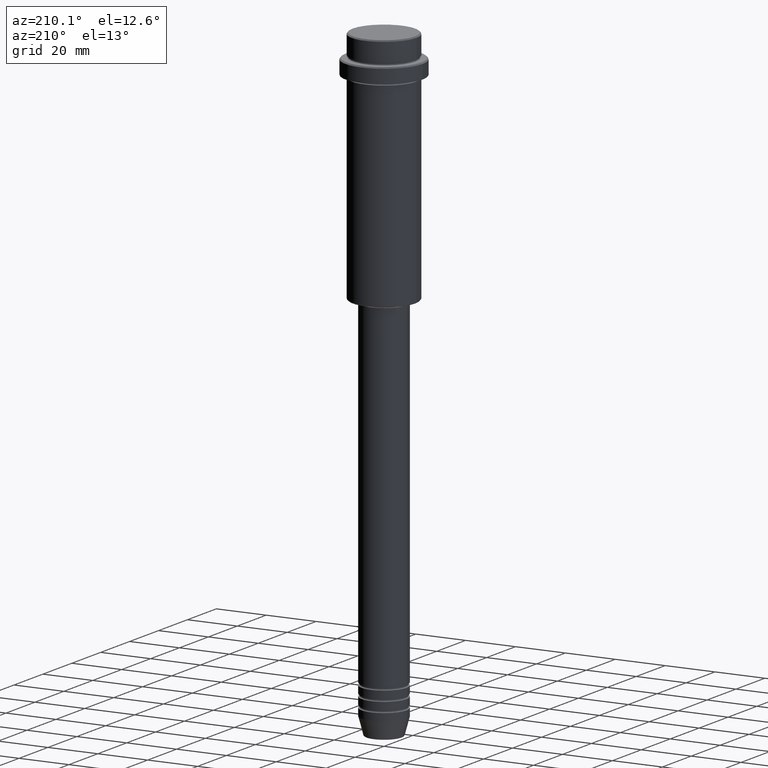
[diagram: clean part render]
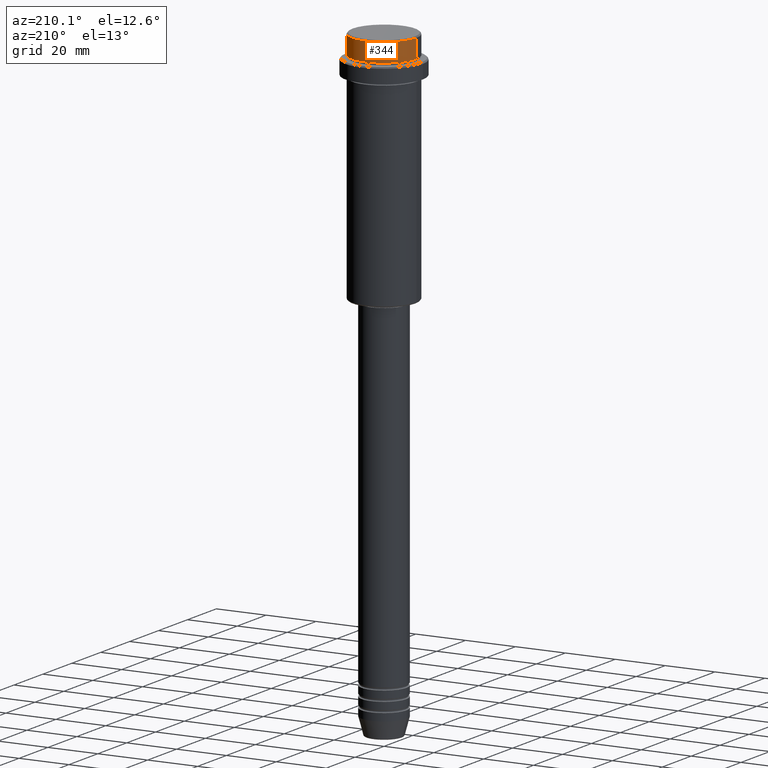
[diagram: same view with one face highlighted and labeled with its STEP entity id]
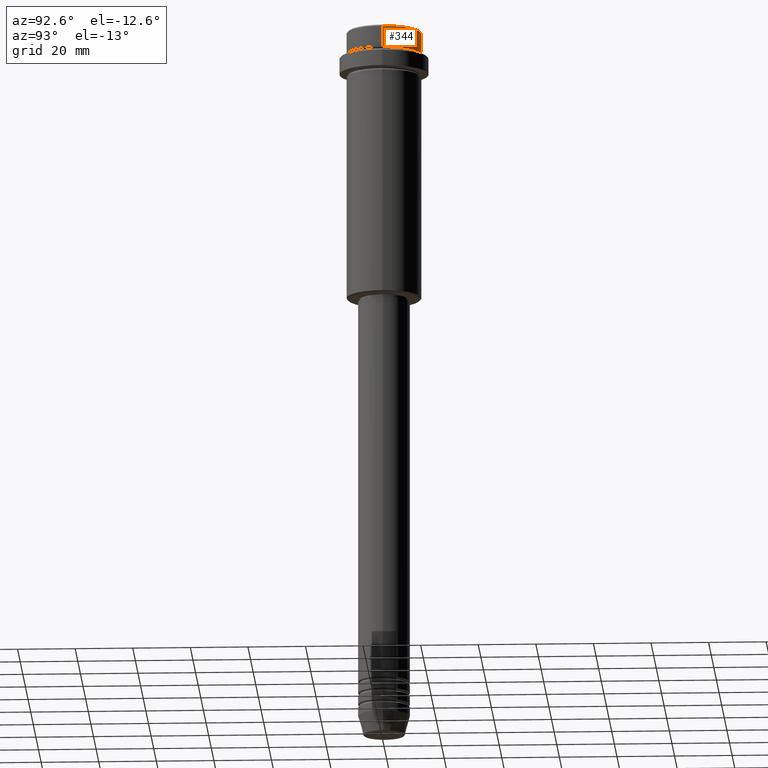
[diagram: same view with one face highlighted and labeled with its STEP entity id]
A machine part, auxiliary view. The second image highlights one B-rep face of the part: STEP entity #344.
A second angle (auxiliary view) of the same face is appended — the face is thin or edge-on in the first view.
In plain terms, the highlighted cylindrical surface (partial cylindrical patch) has radius 13 mm, axis along (-0, -0, 1).
Its self-contained STEP definition (entity closure, byte-faithful):
#12 = CARTESIAN_POINT ( 'NONE',  ( -12.99999999999999822, 1.592040838891558898E-15, -0.5000000000000037748 ) ) ;
#134 = VECTOR ( 'NONE', #1129, 1000.000000000000000 ) ;
#189 = AXIS2_PLACEMENT_3D ( 'NONE', #1327, #781, #1217 ) ;
#254 = VERTEX_POINT ( 'NONE', #998 ) ;
#323 = DIRECTION ( 'NONE',  ( -0.000000000000000000, -0.000000000000000000, 1.000000000000000000 ) ) ;
#344 = ADVANCED_FACE ( 'NONE', ( #1375 ), #1352, .T. ) ;
#351 = EDGE_LOOP ( 'NONE', ( #472, #1298, #1049, #956 ) ) ;
#472 = ORIENTED_EDGE ( 'NONE', *, *, #753, .T. ) ;
#648 = CARTESIAN_POINT ( 'NONE',  ( -12.99999999999999822, 1.592040838891558898E-15, 0.000000000000000000 ) ) ;
#689 = VECTOR ( 'NONE', #1204, 1000.000000000000000 ) ;
#699 = CARTESIAN_POINT ( 'NONE',  ( 12.99999999999999822, 0.000000000000000000, 0.000000000000000000 ) ) ;
#733 = VERTEX_POINT ( 'NONE', #1091 ) ;
#753 = EDGE_CURVE ( 'NONE', #733, #1406, #874, .T. ) ;
#781 = DIRECTION ( 'NONE',  ( 0.000000000000000000, 0.000000000000000000, -1.000000000000000000 ) ) ;
#800 = LINE ( 'NONE', #699, #134 ) ;
#801 = CIRCLE ( 'NONE', #189, 12.99999999999999822 ) ;
#811 = CARTESIAN_POINT ( 'NONE',  ( 0.000000000000000000, 0.000000000000000000, 0.000000000000000000 ) ) ;
#815 = EDGE_CURVE ( 'NONE', #1406, #1314, #1296, .T. ) ;
#867 = DIRECTION ( 'NONE',  ( 1.000000000000000000, 0.000000000000000000, 0.000000000000000000 ) ) ;
#874 = CIRCLE ( 'NONE', #1308, 12.99999999999999822 ) ;
#917 = EDGE_CURVE ( 'NONE', #733, #254, #800, .T. ) ;
#944 = EDGE_CURVE ( 'NONE', #1314, #254, #801, .T. ) ;
#956 = ORIENTED_EDGE ( 'NONE', *, *, #917, .F. ) ;
#972 = AXIS2_PLACEMENT_3D ( 'NONE', #811, #1249, #1392 ) ;
#998 = CARTESIAN_POINT ( 'NONE',  ( 12.99999999999999822, 0.000000000000000000, -0.5000000000000037748 ) ) ;
#1049 = ORIENTED_EDGE ( 'NONE', *, *, #944, .T. ) ;
#1091 = CARTESIAN_POINT ( 'NONE',  ( 12.99999999999999822, 0.000000000000000000, -7.999999999999998224 ) ) ;
#1101 = CARTESIAN_POINT ( 'NONE',  ( 0.000000000000000000, 0.000000000000000000, -7.999999999999998224 ) ) ;
#1129 = DIRECTION ( 'NONE',  ( -0.000000000000000000, -0.000000000000000000, 1.000000000000000000 ) ) ;
#1204 = DIRECTION ( 'NONE',  ( -0.000000000000000000, -0.000000000000000000, 1.000000000000000000 ) ) ;
#1206 = CARTESIAN_POINT ( 'NONE',  ( -12.99999999999999822, 1.592040838891558898E-15, -7.999999999999998224 ) ) ;
#1217 = DIRECTION ( 'NONE',  ( 1.000000000000000000, 0.000000000000000000, 0.000000000000000000 ) ) ;
#1249 = DIRECTION ( 'NONE',  ( -0.000000000000000000, -0.000000000000000000, 1.000000000000000000 ) ) ;
#1296 = LINE ( 'NONE', #648, #689 ) ;
#1298 = ORIENTED_EDGE ( 'NONE', *, *, #815, .T. ) ;
#1308 = AXIS2_PLACEMENT_3D ( 'NONE', #1101, #323, #867 ) ;
#1314 = VERTEX_POINT ( 'NONE', #12 ) ;
#1327 = CARTESIAN_POINT ( 'NONE',  ( 0.000000000000000000, 0.000000000000000000, -0.5000000000000037748 ) ) ;
#1352 = CYLINDRICAL_SURFACE ( 'NONE', #972, 12.99999999999999822 ) ;
#1375 = FACE_OUTER_BOUND ( 'NONE', #351, .T. ) ;
#1392 = DIRECTION ( 'NONE',  ( 1.000000000000000000, 0.000000000000000000, 0.000000000000000000 ) ) ;
#1406 = VERTEX_POINT ( 'NONE', #1206 ) ;